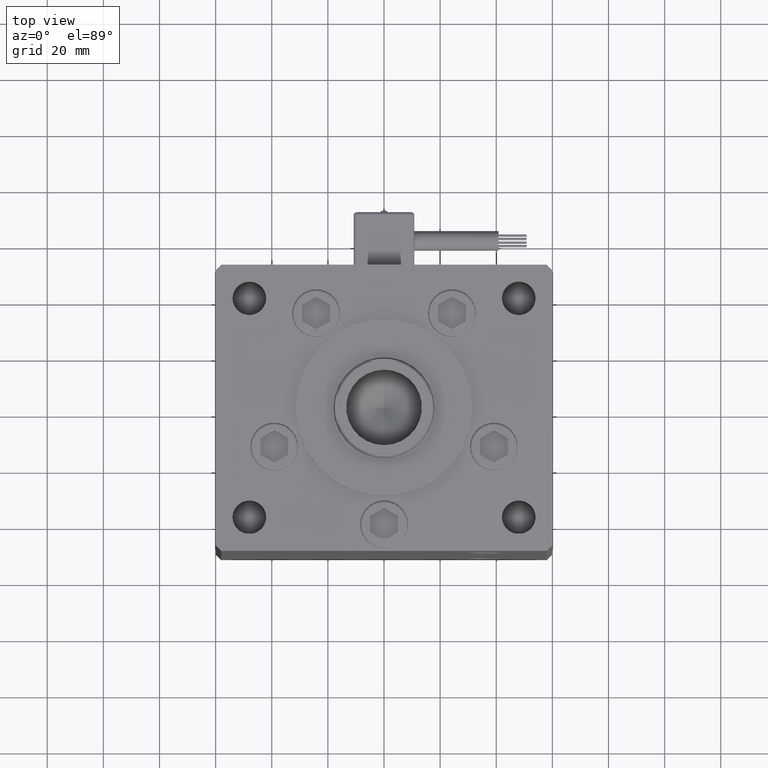
[diagram: clean part render]
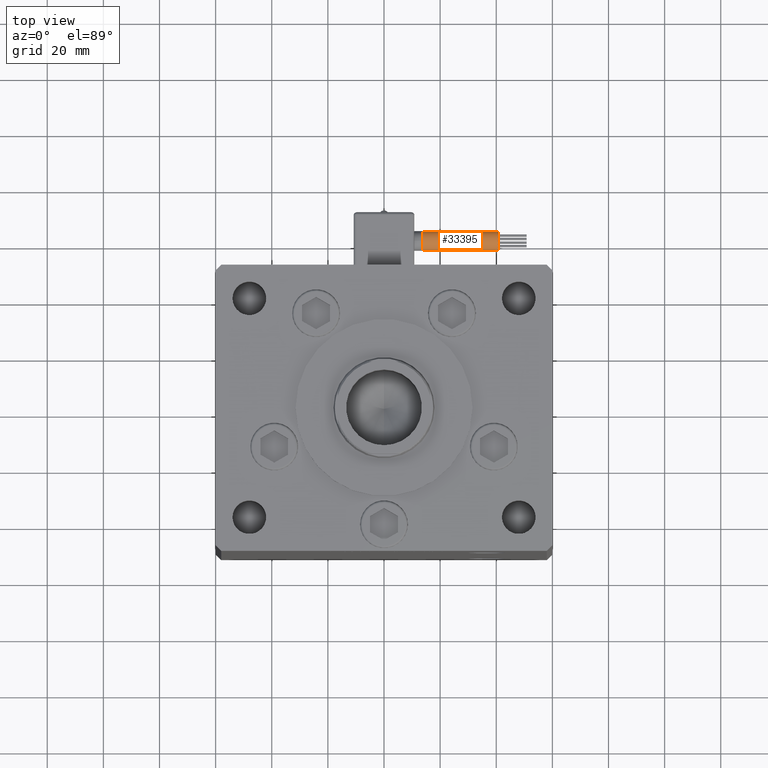
[diagram: same view with one face highlighted and labeled with its STEP entity id]
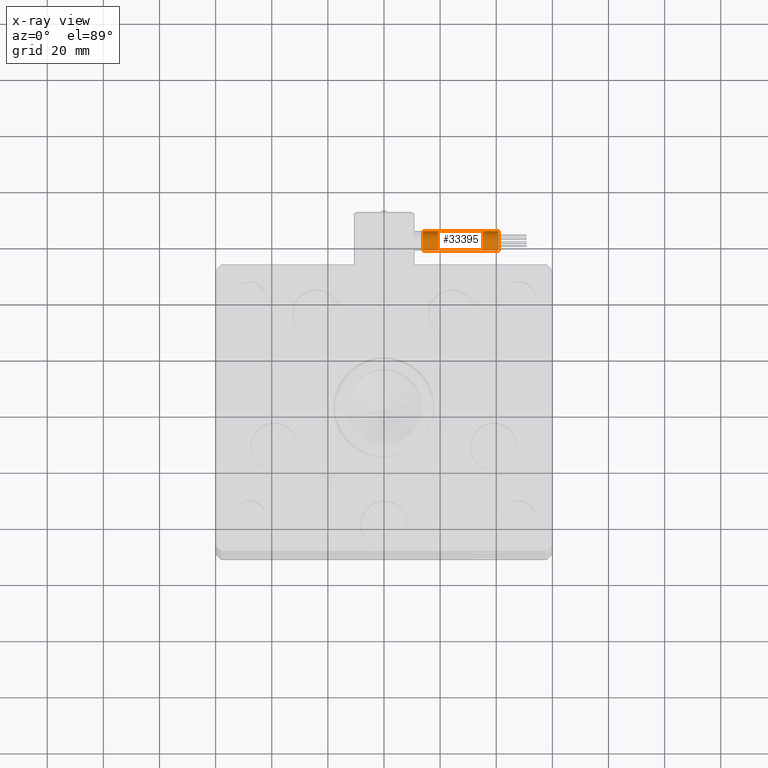
[diagram: x-ray of the same camera — body ghosted, the highlighted face saturated]
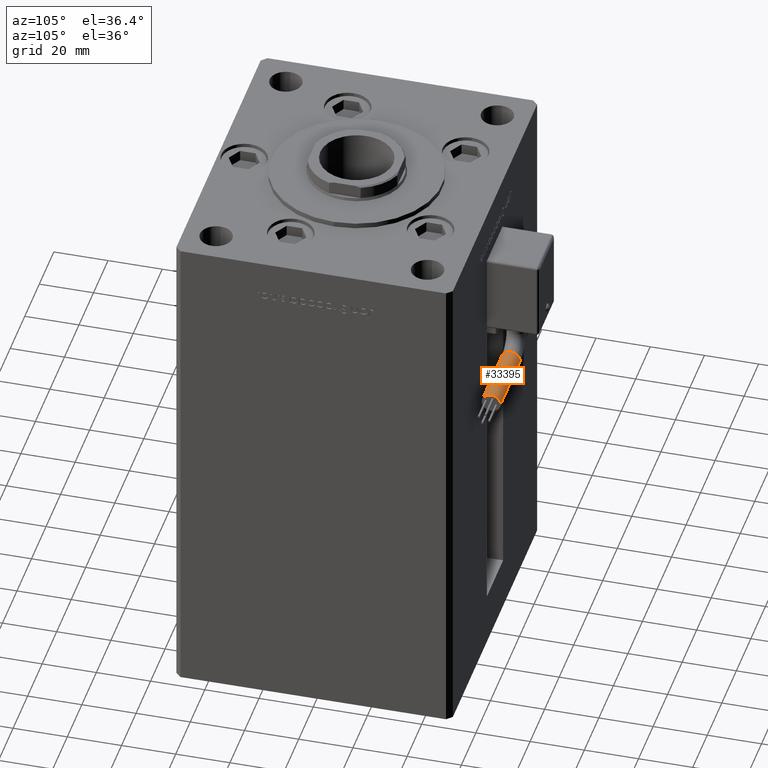
[diagram: same view with one face highlighted and labeled with its STEP entity id]
A machine part, top view. The second image highlights one B-rep face of the part: STEP entity #33395.
The next image is the same camera in x-ray: the body ghosted, the highlighted face saturated — about 0% of this face is hidden behind the body in this view.
A second angle (auxiliary view) of the same face is appended — the face is thin or edge-on in the first view.
In plain terms, the highlighted cylindrical surface (edge-blend (fillet) strip) has radius 3.5 mm, axis along (1, -0, 0).
Its self-contained STEP definition (entity closure, byte-faithful):
#110 = DIRECTION ( 'NONE',  ( 0.000000000000000000, 0.000000000000000000, -1.000000000000000000 ) ) ;
#880 = ORIENTED_EDGE ( 'NONE', *, *, #14982, .F. ) ;
#6040 = AXIS2_PLACEMENT_3D ( 'NONE', #6773, #25547, #24253 ) ;
#6490 = CIRCLE ( 'NONE', #14474, 3.500000000000003109 ) ;
#6773 = CARTESIAN_POINT ( 'NONE',  ( 40.80000000000000426, 42.00000000000000000, -65.00000000000000000 ) ) ;
#6965 = VERTEX_POINT ( 'NONE', #25049 ) ;
#8873 = DIRECTION ( 'NONE',  ( 0.000000000000000000, 0.000000000000000000, -1.000000000000000000 ) ) ;
#11800 = CIRCLE ( 'NONE', #48113, 3.500000000000003109 ) ;
#12705 = EDGE_CURVE ( 'NONE', #45898, #14150, #15441, .T. ) ;
#12870 = CARTESIAN_POINT ( 'NONE',  ( 13.80000000000000071, 45.50000000000000711, -65.00000000000000000 ) ) ;
#14150 = VERTEX_POINT ( 'NONE', #36115 ) ;
#14474 = AXIS2_PLACEMENT_3D ( 'NONE', #21356, #25229, #8873 ) ;
#14982 = EDGE_CURVE ( 'NONE', #6965, #14150, #28161, .T. ) ;
#15441 = LINE ( 'NONE', #35705, #28953 ) ;
#15848 = CYLINDRICAL_SURFACE ( 'NONE', #27804, 3.500000000000003109 ) ;
#18020 = CARTESIAN_POINT ( 'NONE',  ( 13.79999999999999893, 41.99999999999999289, -61.50000000000000000 ) ) ;
#21356 = CARTESIAN_POINT ( 'NONE',  ( 13.79999999999999893, 42.00000000000000000, -65.00000000000000000 ) ) ;
#23789 = CARTESIAN_POINT ( 'NONE',  ( 13.79999999999999893, 38.50000000000000000, -65.00000000000000000 ) ) ;
#24253 = DIRECTION ( 'NONE',  ( 0.000000000000000000, 0.000000000000000000, -1.000000000000000000 ) ) ;
#25049 = CARTESIAN_POINT ( 'NONE',  ( 40.80000000000000426, 45.50000000000000711, -65.00000000000000000 ) ) ;
#25229 = DIRECTION ( 'NONE',  ( 1.000000000000000000, 0.000000000000000000, 2.220446049250000002E-16 ) ) ;
#25363 = ORIENTED_EDGE ( 'NONE', *, *, #32670, .T. ) ;
#25547 = DIRECTION ( 'NONE',  ( 1.000000000000000000, 0.000000000000000000, 2.220446049250000002E-16 ) ) ;
#27804 = AXIS2_PLACEMENT_3D ( 'NONE', #28865, #32477, #37728 ) ;
#28161 = CIRCLE ( 'NONE', #6040, 3.500000000000003109 ) ;
#28865 = CARTESIAN_POINT ( 'NONE',  ( 13.79999999999999893, 42.00000000000000000, -65.00000000000000000 ) ) ;
#28953 = VECTOR ( 'NONE', #35971, 1000.000000000000000 ) ;
#28997 = ORIENTED_EDGE ( 'NONE', *, *, #12705, .T. ) ;
#30061 = LINE ( 'NONE', #12870, #42479 ) ;
#31864 = EDGE_CURVE ( 'NONE', #38238, #45898, #11800, .T. ) ;
#32477 = DIRECTION ( 'NONE',  ( 1.000000000000000000, -2.599999999999999847E-16, 2.220446049250000002E-16 ) ) ;
#32670 = EDGE_CURVE ( 'NONE', #40014, #38238, #6490, .T. ) ;
#33395 = ADVANCED_FACE ( 'NONE', ( #36911 ), #15848, .T. ) ;
#34223 = CARTESIAN_POINT ( 'NONE',  ( 13.79999999999999893, 42.00000000000000000, -65.00000000000000000 ) ) ;
#35056 = DIRECTION ( 'NONE',  ( 1.000000000000000000, 0.000000000000000000, 2.220446049250000002E-16 ) ) ;
#35408 = ORIENTED_EDGE ( 'NONE', *, *, #52256, .F. ) ;
#35705 = CARTESIAN_POINT ( 'NONE',  ( 13.79999999999999716, 38.50000000000000000, -65.00000000000000000 ) ) ;
#35971 = DIRECTION ( 'NONE',  ( 1.000000000000000000, -2.599999999999999847E-16, 2.220446049250000002E-16 ) ) ;
#36115 = CARTESIAN_POINT ( 'NONE',  ( 40.80000000000000426, 38.50000000000000000, -65.00000000000000000 ) ) ;
#36911 = FACE_OUTER_BOUND ( 'NONE', #49377, .T. ) ;
#37728 = DIRECTION ( 'NONE',  ( -4.956352788505158337E-16, -1.000000000000000000, 0.000000000000000000 ) ) ;
#38238 = VERTEX_POINT ( 'NONE', #18020 ) ;
#38664 = DIRECTION ( 'NONE',  ( 1.000000000000000000, -2.599999999999999847E-16, 2.220446049250000002E-16 ) ) ;
#40014 = VERTEX_POINT ( 'NONE', #49142 ) ;
#42479 = VECTOR ( 'NONE', #38664, 1000.000000000000000 ) ;
#45898 = VERTEX_POINT ( 'NONE', #23789 ) ;
#48113 = AXIS2_PLACEMENT_3D ( 'NONE', #34223, #35056, #110 ) ;
#49142 = CARTESIAN_POINT ( 'NONE',  ( 13.79999999999999893, 45.50000000000000711, -65.00000000000000000 ) ) ;
#49377 = EDGE_LOOP ( 'NONE', ( #35408, #25363, #51274, #28997, #880 ) ) ;
#51274 = ORIENTED_EDGE ( 'NONE', *, *, #31864, .T. ) ;
#52256 = EDGE_CURVE ( 'NONE', #40014, #6965, #30061, .T. ) ;